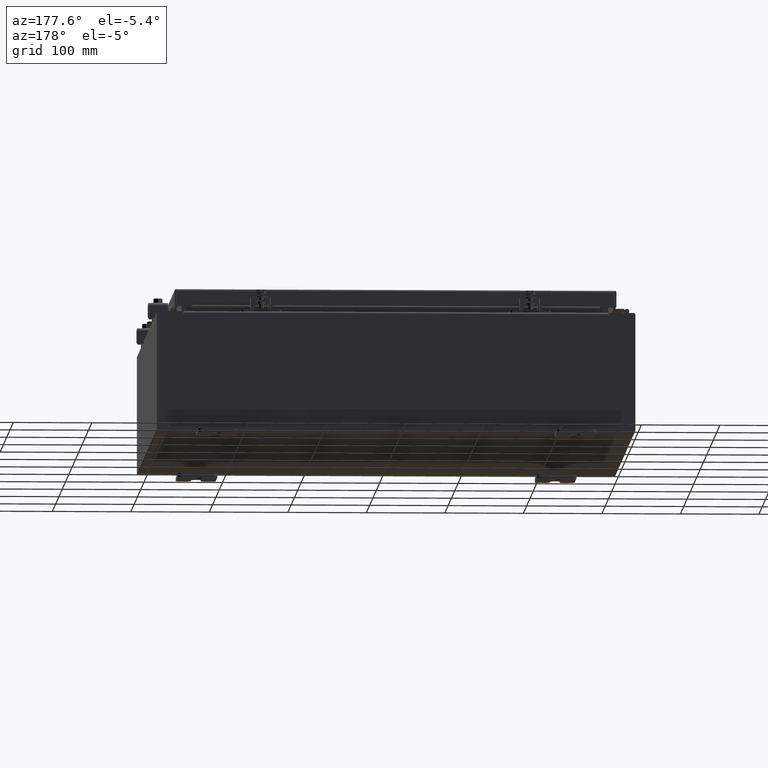
[diagram: clean part render]
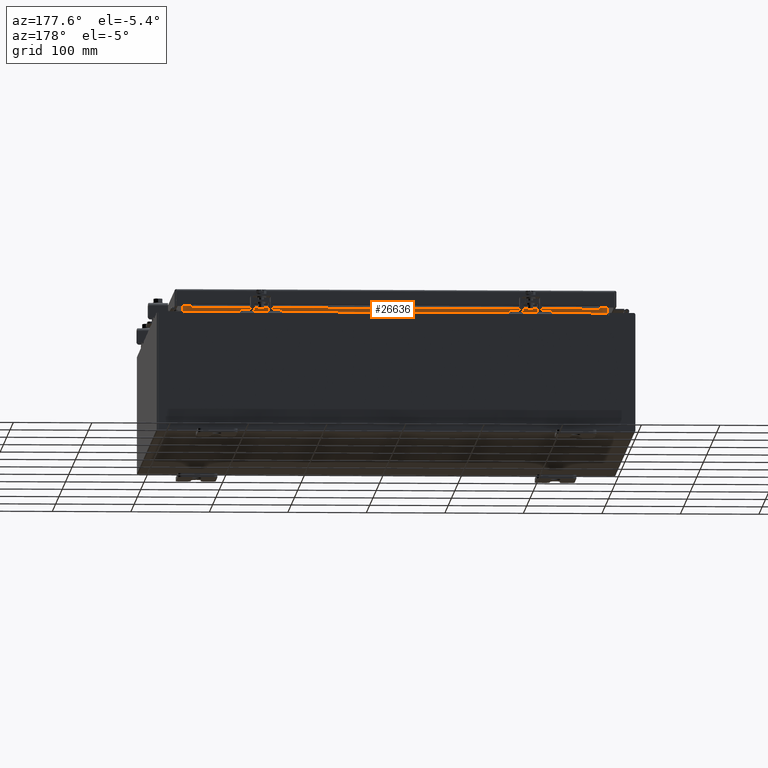
[diagram: same view with one face highlighted and labeled with its STEP entity id]
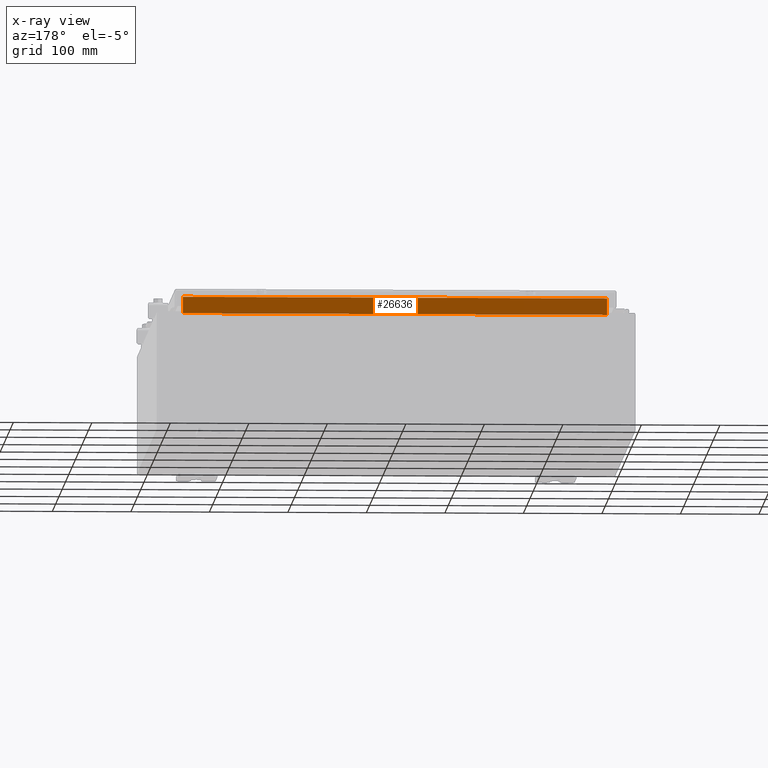
[diagram: x-ray of the same camera — body ghosted, the highlighted face saturated]
A machine part, auxiliary view. The second image highlights one B-rep face of the part: STEP entity #26636.
The next image is the same camera in x-ray: the body ghosted, the highlighted face saturated — about 0% of this face is hidden behind the body in this view.
In plain terms, the highlighted planar face has unit normal (0, 1, 0).
Its self-contained STEP definition (entity closure, byte-faithful):
#973 = ORIENTED_EDGE ( 'NONE', *, *, #3332, .F. ) ;
#1066 = EDGE_LOOP ( 'NONE', ( #23756, #24873, #973, #2718 ) ) ;
#1736 = VECTOR ( 'NONE', #30272, 39.37007874015748100 ) ;
#2718 = ORIENTED_EDGE ( 'NONE', *, *, #3547, .F. ) ;
#3332 = EDGE_CURVE ( 'NONE', #29391, #23732, #32394, .T. ) ;
#3547 = EDGE_CURVE ( 'NONE', #19769, #29391, #30973, .T. ) ;
#4196 = EDGE_CURVE ( 'NONE', #23732, #26281, #26242, .T. ) ;
#7225 = CARTESIAN_POINT ( 'NONE',  ( -10.63720000000000400, -1.300299999999999800, 3.013000000000004800 ) ) ;
#10708 = CARTESIAN_POINT ( 'NONE',  ( -10.63720000000000200, -1.300300000000000200, 3.837600000000005000 ) ) ;
#10844 = EDGE_CURVE ( 'NONE', #26281, #19769, #21813, .T. ) ;
#11028 = CARTESIAN_POINT ( 'NONE',  ( -10.63720000000000200, -1.300299999999999800, 3.013000000000005200 ) ) ;
#11205 = CARTESIAN_POINT ( 'NONE',  ( 0.0000000000000000000, -1.300299999999999800, 0.0000000000000000000 ) ) ;
#12861 = DIRECTION ( 'NONE',  ( 0.0000000000000000000, 1.000000000000000000, 0.0000000000000000000 ) ) ;
#14960 = AXIS2_PLACEMENT_3D ( 'NONE', #11205, #12861, #15898 ) ;
#15898 = DIRECTION ( 'NONE',  ( 0.0000000000000000000, -0.0000000000000000000, 1.000000000000000000 ) ) ;
#17134 = CARTESIAN_POINT ( 'NONE',  ( 10.63720000000000200, -1.300299999999999800, 3.837600000000005000 ) ) ;
#18085 = CARTESIAN_POINT ( 'NONE',  ( 10.63720000000000400, -1.300299999999999800, 3.013000000000004800 ) ) ;
#18523 = VECTOR ( 'NONE', #25393, 39.37007874015748100 ) ;
#19512 = PLANE ( 'NONE',  #14960 ) ;
#19769 = VERTEX_POINT ( 'NONE', #7225 ) ;
#21813 = LINE ( 'NONE', #28449, #26205 ) ;
#23732 = VERTEX_POINT ( 'NONE', #17134 ) ;
#23756 = ORIENTED_EDGE ( 'NONE', *, *, #10844, .F. ) ;
#24873 = ORIENTED_EDGE ( 'NONE', *, *, #4196, .F. ) ;
#25393 = DIRECTION ( 'NONE',  ( 1.000000000000000000, 0.0000000000000000000, -5.136404305013091600E-017 ) ) ;
#25833 = CARTESIAN_POINT ( 'NONE',  ( 10.63720000000000200, -1.300300000000000200, 3.837600000000005000 ) ) ;
#26156 = CARTESIAN_POINT ( 'NONE',  ( 10.63720000000000200, -1.300299999999999800, 3.925300000000005300 ) ) ;
#26205 = VECTOR ( 'NONE', #26628, 39.37007874015748100 ) ;
#26242 = LINE ( 'NONE', #25833, #26979 ) ;
#26281 = VERTEX_POINT ( 'NONE', #10708 ) ;
#26628 = DIRECTION ( 'NONE',  ( -0.0000000000000000000, -0.0000000000000000000, -1.000000000000000000 ) ) ;
#26636 = ADVANCED_FACE ( 'NONE', ( #29122 ), #19512, .T. ) ;
#26979 = VECTOR ( 'NONE', #27722, 39.37007874015748100 ) ;
#27722 = DIRECTION ( 'NONE',  ( -1.000000000000000000, -0.0000000000000000000, -0.0000000000000000000 ) ) ;
#28449 = CARTESIAN_POINT ( 'NONE',  ( -10.63720000000000200, -1.300299999999999800, 3.000000000000005300 ) ) ;
#29122 = FACE_OUTER_BOUND ( 'NONE', #1066, .T. ) ;
#29391 = VERTEX_POINT ( 'NONE', #18085 ) ;
#30272 = DIRECTION ( 'NONE',  ( -0.0000000000000000000, -0.0000000000000000000, 1.000000000000000000 ) ) ;
#30973 = LINE ( 'NONE', #11028, #18523 ) ;
#32394 = LINE ( 'NONE', #26156, #1736 ) ;